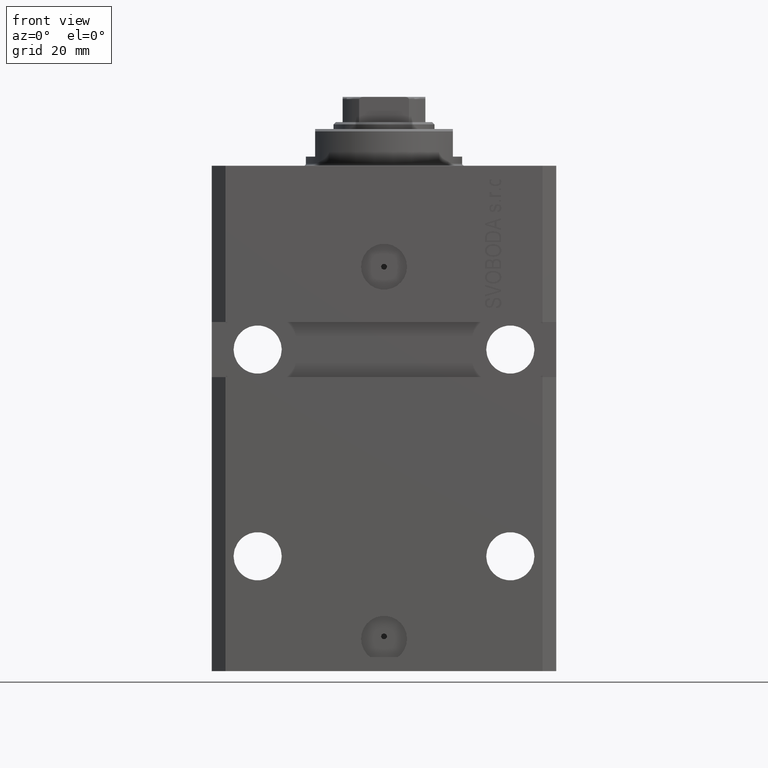
[diagram: clean part render]
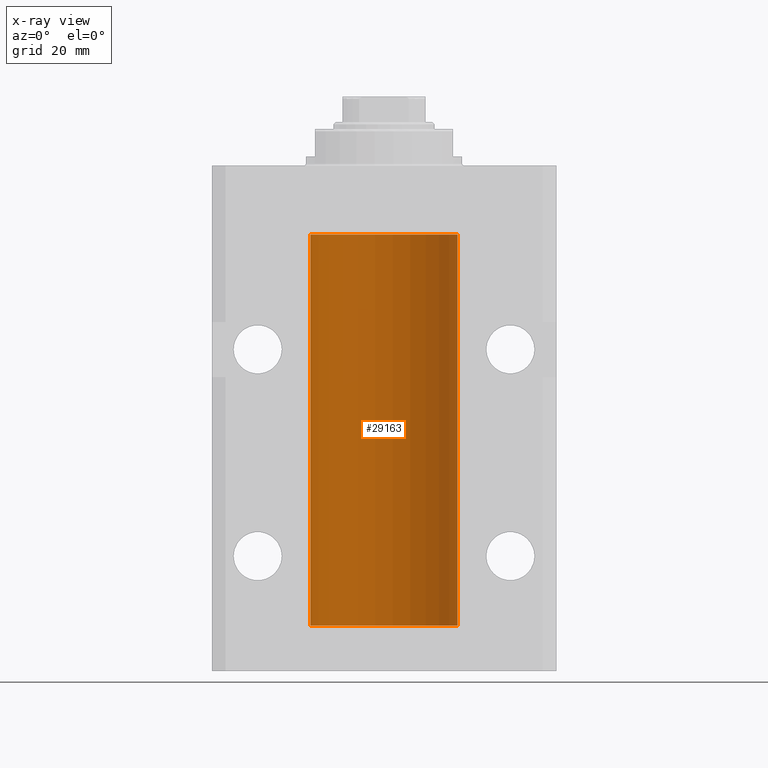
[diagram: x-ray — body ghosted, one internal face saturated and labeled with its STEP entity id]
A machine part, front view, then the same camera in x-ray: the body is ghosted and one INTERNAL B-rep face — a face not visible from any outside direction — is saturated and labeled: STEP entity #29163.
In plain terms, the highlighted cylindrical surface (partial cylindrical patch) has radius 16 mm, axis along (0, 0, 1).
Its self-contained STEP definition (entity closure, byte-faithful):
#31 = CARTESIAN_POINT ( 'NONE',  ( -15.99070653155267685, 0.5573233280232986475, -21.67348148680506625 ) ) ;
#261 = CARTESIAN_POINT ( 'NONE',  ( -16.00000000000000000, 1.643679961284177128E-16, -21.37499999999999645 ) ) ;
#515 = CARTESIAN_POINT ( 'NONE',  ( -16.00000000000000000, 1.959434878635765131E-15, -15.00000000000000000 ) ) ;
#589 = CARTESIAN_POINT ( 'NONE',  ( 0.000000000000000000, 0.000000000000000000, -100.0999999999999943 ) ) ;
#1330 = DIRECTION ( 'NONE',  ( -0.000000000000000000, -0.000000000000000000, 1.000000000000000000 ) ) ;
#3134 = DIRECTION ( 'NONE',  ( -0.000000000000000000, -0.000000000000000000, 1.000000000000000000 ) ) ;
#3354 = CARTESIAN_POINT ( 'NONE',  ( -16.00000000000000000, 1.959434878635765131E-15, -100.0999999999999943 ) ) ;
#3475 = CARTESIAN_POINT ( 'NONE',  ( 16.00000000000000000, 0.000000000000000000, -15.00000000000000000 ) ) ;
#3617 = CARTESIAN_POINT ( 'NONE',  ( -16.00000000000013145, 3.685127038166941002E-13, -22.62500000000341771 ) ) ;
#3996 = CIRCLE ( 'NONE', #37627, 16.00000000000000000 ) ;
#4556 = VERTEX_POINT ( 'NONE', #25922 ) ;
#4635 = FACE_OUTER_BOUND ( 'NONE', #17486, .T. ) ;
#5512 = CIRCLE ( 'NONE', #32292, 16.00000000000000000 ) ;
#5575 = VERTEX_POINT ( 'NONE', #22244 ) ;
#5961 = ORIENTED_EDGE ( 'NONE', *, *, #30269, .F. ) ;
#6217 = VERTEX_POINT ( 'NONE', #3475 ) ;
#7051 = AXIS2_PLACEMENT_3D ( 'NONE', #589, #15193, #33857 ) ;
#7982 = VERTEX_POINT ( 'NONE', #32657 ) ;
#8216 = ORIENTED_EDGE ( 'NONE', *, *, #47166, .F. ) ;
#8218 = B_SPLINE_CURVE_WITH_KNOTS ( 'NONE', 3,
 ( #261, #40482, #11031, #32846, #37121, #31, #18455, #18224, #14867, #26098, #25881, #29700, #40949, #3617 ),
 .UNSPECIFIED., .F., .F.,
 ( 4, 2, 2, 2, 2, 2, 4 ),
 ( 1.597328219370744179E-19, 0.0002442776652680942405, 0.0004885553305361882643, 0.0009771106610723839011, 0.001221388326340481665, 0.001465665991608579430, 0.001954221322144767369 ),
 .UNSPECIFIED. ) ;
#9809 = VECTOR ( 'NONE', #43127, 1000.000000000000000 ) ;
#10124 = CARTESIAN_POINT ( 'NONE',  ( -15.99070426498503572, 0.5462220647145610286, -98.31460064614144301 ) ) ;
#10312 = CARTESIAN_POINT ( 'NONE',  ( 16.00000000000000000, 0.000000000000000000, -100.0999999999999943 ) ) ;
#10403 = ORIENTED_EDGE ( 'NONE', *, *, #24258, .T. ) ;
#11031 = CARTESIAN_POINT ( 'NONE',  ( -15.99934216141748244, 0.1636497843296417787, -21.39126528029306229 ) ) ;
#11925 = CARTESIAN_POINT ( 'NONE',  ( -16.00000000000013145, 3.685127046438747128E-13, -98.62500000000343903 ) ) ;
#13731 = CARTESIAN_POINT ( 'NONE',  ( -15.99548640841682712, 0.3843705577988784650, -97.50046628527007897 ) ) ;
#14631 = CARTESIAN_POINT ( 'NONE',  ( -16.00000000000013145, 3.685127038166941002E-13, -22.62500000000341771 ) ) ;
#14708 = VERTEX_POINT ( 'NONE', #40871 ) ;
#14867 = CARTESIAN_POINT ( 'NONE',  ( -15.98844267028591482, 0.6088369347963316081, -22.16324735024328518 ) ) ;
#15035 = EDGE_CURVE ( 'NONE', #7982, #18178, #38665, .T. ) ;
#15193 = DIRECTION ( 'NONE',  ( -0.000000000000000000, -0.000000000000000000, 1.000000000000000000 ) ) ;
#15541 = DIRECTION ( 'NONE',  ( 1.000000000000000000, 0.000000000000000000, 0.000000000000000000 ) ) ;
#15729 = EDGE_CURVE ( 'NONE', #5575, #46007, #30290, .T. ) ;
#16841 = CARTESIAN_POINT ( 'NONE',  ( -15.99711699979841661, 0.3253759916140614439, -98.55856151623174810 ) ) ;
#16978 = ORIENTED_EDGE ( 'NONE', *, *, #17220, .T. ) ;
#17220 = EDGE_CURVE ( 'NONE', #14708, #6217, #28513, .T. ) ;
#17486 = EDGE_LOOP ( 'NONE', ( #8216, #5961, #16978, #10403, #37196, #38453, #37477, #24374 ) ) ;
#18178 = VERTEX_POINT ( 'NONE', #14631 ) ;
#18224 = CARTESIAN_POINT ( 'NONE',  ( -15.98778717651346071, 0.6250289588122140971, -22.08131585687052478 ) ) ;
#18455 = CARTESIAN_POINT ( 'NONE',  ( -15.98779057735153941, 0.6249419637998100407, -21.83670145863507273 ) ) ;
#19616 = DIRECTION ( 'NONE',  ( 0.000000000000000000, 0.000000000000000000, 1.000000000000000000 ) ) ;
#20227 = CARTESIAN_POINT ( 'NONE',  ( -16.00000000000000000, 1.959434878635765131E-15, -100.0999999999999943 ) ) ;
#21609 = CARTESIAN_POINT ( 'NONE',  ( -15.98844267028590949, 0.6088369347963275002, -98.16324735024325321 ) ) ;
#22244 = CARTESIAN_POINT ( 'NONE',  ( -16.00000000000000000, 1.643679961284177128E-16, -21.37499999999999645 ) ) ;
#22592 = B_SPLINE_CURVE_WITH_KNOTS ( 'NONE', 3,
 ( #35533, #24976, #36227, #46538, #13731, #46297, #28329, #42942, #21609, #10124, #32402, #16841, #46055, #11925 ),
 .UNSPECIFIED., .F., .F.,
 ( 4, 2, 2, 2, 2, 2, 4 ),
 ( 1.003919637555167698E-18, 0.0002442776652680894158, 0.0004885553305361776391, 0.0009771106610723541940, 0.001221388326340463017, 0.001465665991608572274, 0.001954221322144760863 ),
 .UNSPECIFIED. ) ;
#24258 = EDGE_CURVE ( 'NONE', #6217, #46007, #5512, .T. ) ;
#24374 = ORIENTED_EDGE ( 'NONE', *, *, #28631, .T. ) ;
#24976 = CARTESIAN_POINT ( 'NONE',  ( -16.00000000000000711, 0.08259886010188650929, -97.37500000000000000 ) ) ;
#25098 = VECTOR ( 'NONE', #3134, 1000.000000000000000 ) ;
#25167 = CARTESIAN_POINT ( 'NONE',  ( -16.00000000000000000, 1.959434878635765131E-15, -100.0999999999999943 ) ) ;
#25881 = CARTESIAN_POINT ( 'NONE',  ( -15.99228023727724413, 0.5003781296993413674, -22.38347829554236057 ) ) ;
#25922 = CARTESIAN_POINT ( 'NONE',  ( -16.00000000000013145, 3.685127046438747128E-13, -98.62500000000343903 ) ) ;
#26098 = CARTESIAN_POINT ( 'NONE',  ( -15.99070426498503217, 0.5462220647145618058, -22.31460064614143590 ) ) ;
#26539 = VECTOR ( 'NONE', #41547, 1000.000000000000000 ) ;
#28329 = CARTESIAN_POINT ( 'NONE',  ( -15.98779057735153941, 0.6249419637998017141, -97.83670145863504786 ) ) ;
#28513 = LINE ( 'NONE', #10312, #9809 ) ;
#28631 = EDGE_CURVE ( 'NONE', #7982, #4556, #22592, .T. ) ;
#29163 = ADVANCED_FACE ( 'NONE', ( #4635 ), #33394, .F. ) ;
#29700 = CARTESIAN_POINT ( 'NONE',  ( -15.99711699979842017, 0.3253759916140657737, -22.55856151623175521 ) ) ;
#30146 = CARTESIAN_POINT ( 'NONE',  ( 0.000000000000000000, 0.000000000000000000, -100.0999999999999943 ) ) ;
#30269 = EDGE_CURVE ( 'NONE', #14708, #33513, #3996, .T. ) ;
#30290 = LINE ( 'NONE', #44895, #41082 ) ;
#32038 = EDGE_CURVE ( 'NONE', #5575, #18178, #8218, .T. ) ;
#32292 = AXIS2_PLACEMENT_3D ( 'NONE', #37727, #44201, #37015 ) ;
#32402 = CARTESIAN_POINT ( 'NONE',  ( -15.99228023727724057, 0.5003781296993360383, -98.38347829554236057 ) ) ;
#32657 = CARTESIAN_POINT ( 'NONE',  ( -16.00000000000000000, -1.303459030566954747E-14, -97.37500000000000000 ) ) ;
#32846 = CARTESIAN_POINT ( 'NONE',  ( -15.99707730059171240, 0.3150375992092407373, -21.45402333202571654 ) ) ;
#33394 = CYLINDRICAL_SURFACE ( 'NONE', #7051, 16.00000000000000000 ) ;
#33513 = VERTEX_POINT ( 'NONE', #3354 ) ;
#33857 = DIRECTION ( 'NONE',  ( 1.000000000000000000, 0.000000000000000000, 0.000000000000000000 ) ) ;
#35533 = CARTESIAN_POINT ( 'NONE',  ( -16.00000000000000000, -1.303459030566954747E-14, -97.37500000000000000 ) ) ;
#35960 = LINE ( 'NONE', #25167, #25098 ) ;
#36227 = CARTESIAN_POINT ( 'NONE',  ( -15.99934216141748244, 0.1636497843296308152, -97.39126528029306940 ) ) ;
#37015 = DIRECTION ( 'NONE',  ( 1.000000000000000000, 0.000000000000000000, 0.000000000000000000 ) ) ;
#37121 = CARTESIAN_POINT ( 'NONE',  ( -15.99548640841683067, 0.3843705577988847377, -21.50046628527008608 ) ) ;
#37196 = ORIENTED_EDGE ( 'NONE', *, *, #15729, .F. ) ;
#37477 = ORIENTED_EDGE ( 'NONE', *, *, #15035, .F. ) ;
#37627 = AXIS2_PLACEMENT_3D ( 'NONE', #30146, #19616, #15541 ) ;
#37727 = CARTESIAN_POINT ( 'NONE',  ( 0.000000000000000000, 0.000000000000000000, -15.00000000000000000 ) ) ;
#38453 = ORIENTED_EDGE ( 'NONE', *, *, #32038, .T. ) ;
#38665 = LINE ( 'NONE', #20227, #26539 ) ;
#40482 = CARTESIAN_POINT ( 'NONE',  ( -16.00000000000000711, 0.08259886010189904093, -21.37500000000000000 ) ) ;
#40871 = CARTESIAN_POINT ( 'NONE',  ( 16.00000000000000000, 0.000000000000000000, -100.0999999999999943 ) ) ;
#40949 = CARTESIAN_POINT ( 'NONE',  ( -16.00000000000000000, 0.1631714642025800244, -22.62499999999985789 ) ) ;
#41082 = VECTOR ( 'NONE', #1330, 1000.000000000000000 ) ;
#41547 = DIRECTION ( 'NONE',  ( -0.000000000000000000, -0.000000000000000000, 1.000000000000000000 ) ) ;
#42942 = CARTESIAN_POINT ( 'NONE',  ( -15.98778717651346604, 0.6250289588122097673, -98.08131585687051768 ) ) ;
#43127 = DIRECTION ( 'NONE',  ( -0.000000000000000000, -0.000000000000000000, 1.000000000000000000 ) ) ;
#44201 = DIRECTION ( 'NONE',  ( 0.000000000000000000, 0.000000000000000000, 1.000000000000000000 ) ) ;
#44895 = CARTESIAN_POINT ( 'NONE',  ( -16.00000000000000000, 1.959434878635765131E-15, -100.0999999999999943 ) ) ;
#46007 = VERTEX_POINT ( 'NONE', #515 ) ;
#46055 = CARTESIAN_POINT ( 'NONE',  ( -15.99999999999998934, 0.1631714642025804407, -98.62499999999987210 ) ) ;
#46297 = CARTESIAN_POINT ( 'NONE',  ( -15.99070653155267685, 0.5573233280232928744, -97.67348148680505915 ) ) ;
#46538 = CARTESIAN_POINT ( 'NONE',  ( -15.99707730059171240, 0.3150375992092294686, -97.45402333202572720 ) ) ;
#47166 = EDGE_CURVE ( 'NONE', #33513, #4556, #35960, .T. ) ;